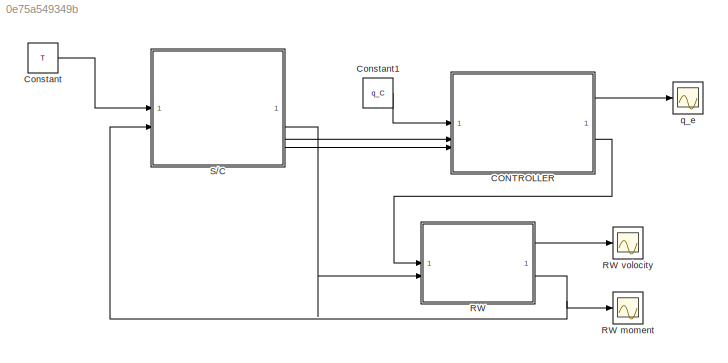
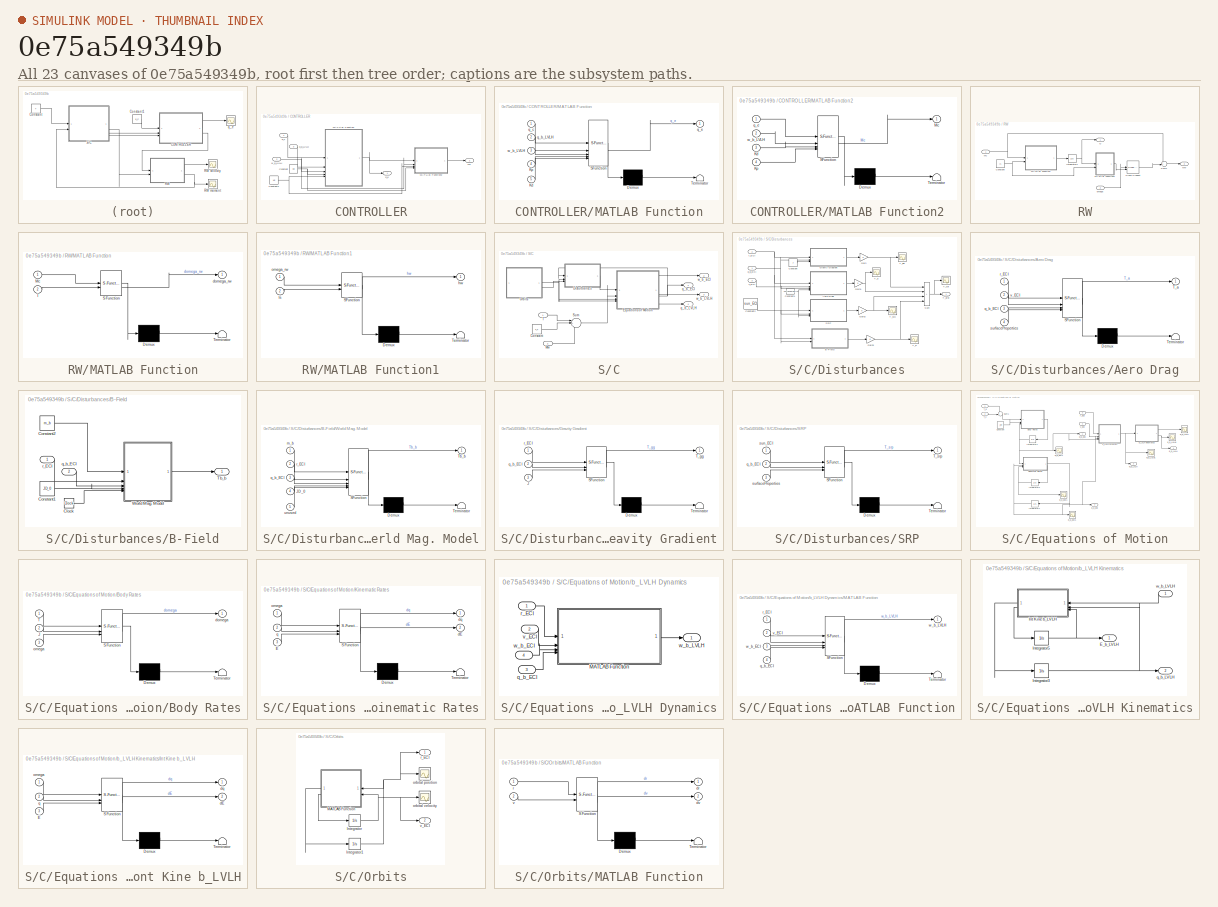
[diagram: thumbnail index - all 23 canvases of the model, root first then tree order]
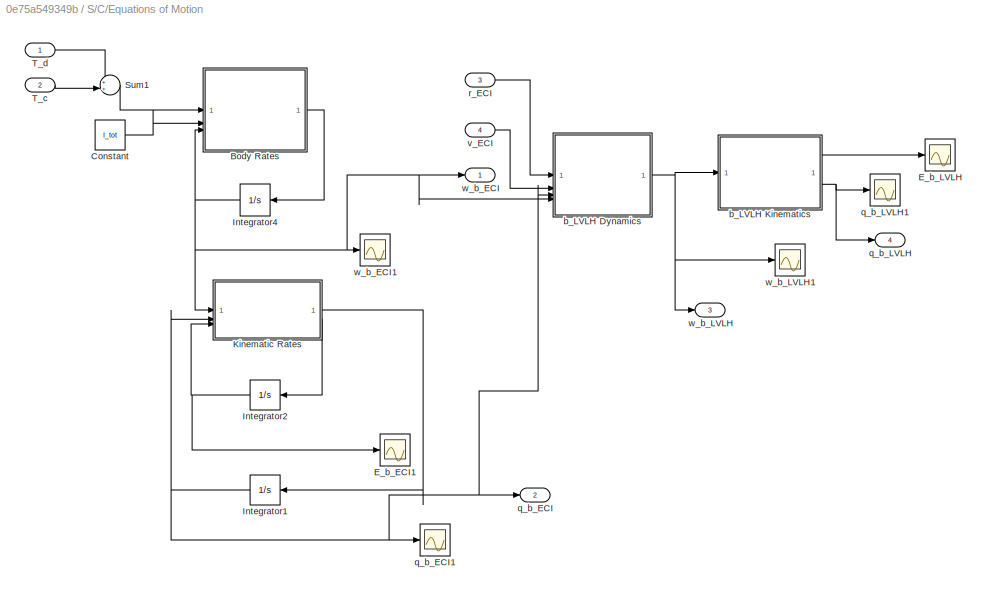
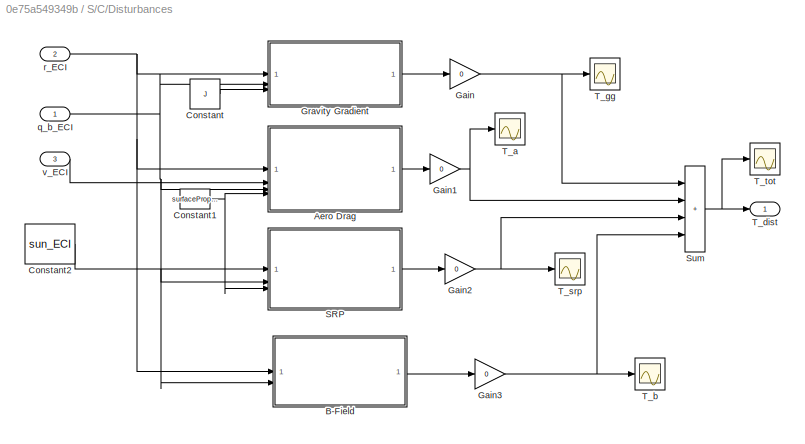
MODEL slx_0e75a549349b
KIND model
CONFIG AbsTol = auto
CONFIG EnableMultiTasking = off
CONFIG FixedStep = auto
CONFIG MaxStep = auto
CONFIG MinStep = auto
CONFIG RelTol = 1e-3
CONFIG SampleTimeConstraint = Unconstrained
CONFIG SolverName = VariableStepAuto
CONFIG StartTime = 0.0
CONFIG StopTime = orbital_period
BLOCK [SubSystem] CONTROLLER
BLOCK [Constant] CONTROLLER/Constant
  Value = Kp
BLOCK [Constant] CONTROLLER/Constant2
  Value = Kd
BLOCK [SubSystem] CONTROLLER/MATLAB Function
  ErrorFcn = Stateflow.Translate.translate
  LibrarySourceBlock = simulink/User-Defined\nFunctions/MATLAB Function
  PermitHierarchicalResolution = ExplicitOnly
  SFBlockType = MATLAB Function
  TreatAsAtomicUnit = on
BLOCK [Demux] CONTROLLER/MATLAB Function/ Demux 
  Outputs = 1
BLOCK [S-Function] CONTROLLER/MATLAB Function/ SFunction 
  EnableBusSupport = on
  FunctionName = sf_sfun
  PortCounts = [5 2]
  SFcnIsStateOwnerBlock = off
  SFunctionDeploymentMode = off
  Tag = Stateflow S-Function 1
BLOCK [Terminator] CONTROLLER/MATLAB Function/ Terminator 
BLOCK [Inport] CONTROLLER/MATLAB Function/Kd
  Port = 5
BLOCK [Inport] CONTROLLER/MATLAB Function/Kp
  Port = 4
BLOCK [Inport] CONTROLLER/MATLAB Function/q_b_LVLH
  Port = 2
BLOCK [Inport] CONTROLLER/MATLAB Function/q_c
BLOCK [Outport] CONTROLLER/MATLAB Function/q_e
BLOCK [Inport] CONTROLLER/MATLAB Function/w_b_LVLH
  Port = 3
BLOCK [SubSystem] CONTROLLER/MATLAB Function2
  ErrorFcn = Stateflow.Translate.translate
  PermitHierarchicalResolution = ExplicitOnly
  SFBlockType = MATLAB Function
  TreatAsAtomicUnit = on
BLOCK [Demux] CONTROLLER/MATLAB Function2/ Demux 
  Outputs = 1
BLOCK [S-Function] CONTROLLER/MATLAB Function2/ SFunction 
  EnableBusSupport = on
  FunctionName = sf_sfun
  PortCounts = [4 2]
  SFcnIsStateOwnerBlock = off
  SFunctionDeploymentMode = off
  Tag = Stateflow S-Function 12
BLOCK [Terminator] CONTROLLER/MATLAB Function2/ Terminator 
BLOCK [Inport] CONTROLLER/MATLAB Function2/Kd
  Port = 3
BLOCK [Inport] CONTROLLER/MATLAB Function2/Kp
  Port = 4
BLOCK [Outport] CONTROLLER/MATLAB Function2/Mc
BLOCK [Inport] CONTROLLER/MATLAB Function2/q_e
BLOCK [Inport] CONTROLLER/MATLAB Function2/w_b_LVLH
  Port = 2
BLOCK [Outport] CONTROLLER/Mc
  Port = 2
BLOCK [Inport] CONTROLLER/q_b_LVLH
  Port = 3
BLOCK [Inport] CONTROLLER/q_c
BLOCK [Outport] CONTROLLER/q_e
BLOCK [Inport] CONTROLLER/w_b_LVLH
  Port = 2
BLOCK [Constant] Constant
  Value = T
  VectorParams1D = off
BLOCK [Constant] Constant1
  Value = q_C
BLOCK [SubSystem] RW
BLOCK [Scope] RW moment
  Floating = off
  NumInputPorts = 1
  ScopeSpecificationString = Simulink.scopes.TimeScopeBlockCfg('CurrentConfiguration', extmgr.ConfigurationSet(extmgr.Configuration('Core','General UI',true),extmgr.Configuration('Core','Source UI',true),extmgr.Configuration('Sources','WiredSimulink',true,'DataLoggingVariableName','RW_M','DataLogging',true,'DataLoggingSaveFormat','Structure'),extmgr.Configuration('Visuals','Time Domain',true,'SerializedDisplays',{struct('MinY...<+1521ch>
BLOCK [Scope] RW volocity
  Floating = off
  NumInputPorts = 1
  ScopeSpecificationString = Simulink.scopes.TimeScopeBlockCfg('CurrentConfiguration', extmgr.ConfigurationSet(extmgr.Configuration('Core','General UI',true),extmgr.Configuration('Core','Source UI',true),extmgr.Configuration('Sources','WiredSimulink',true,'DataLoggingVariableName','RW_v','DataLogging',true,'DataLoggingSaveFormat','Array'),extmgr.Configuration('Visuals','Time Domain',true,'SerializedDisplays',{struct('MinYLimR...<+1523ch>
BLOCK [Constant] RW/Constant
  Value = Is
BLOCK [Reference] RW/Cross Product  REF=matrix_library/Cross Product
  LibrarySourceBlock = simulink/Matrix\nOperations/Cross Product
  SourceBlock = matrix_library/Cross Product
  SourceType = CrossProduct
BLOCK [Integrator] RW/Integrator3
BLOCK [SubSystem] RW/MATLAB Function
  ErrorFcn = Stateflow.Translate.translate
  PermitHierarchicalResolution = ExplicitOnly
  SFBlockType = MATLAB Function
  TreatAsAtomicUnit = on
BLOCK [Demux] RW/MATLAB Function/ Demux 
  Outputs = 1
BLOCK [S-Function] RW/MATLAB Function/ SFunction 
  EnableBusSupport = on
  FunctionName = sf_sfun
  PortCounts = [2 2]
  SFcnIsStateOwnerBlock = off
  SFunctionDeploymentMode = off
  Tag = Stateflow S-Function 3
BLOCK [Terminator] RW/MATLAB Function/ Terminator 
BLOCK [Inport] RW/MATLAB Function/I
  Port = 2
BLOCK [Inport] RW/MATLAB Function/Mc
BLOCK [Outport] RW/MATLAB Function/domega_rw
BLOCK [SubSystem] RW/MATLAB Function1
  ErrorFcn = Stateflow.Translate.translate
  PermitHierarchicalResolution = ExplicitOnly
  SFBlockType = MATLAB Function
  TreatAsAtomicUnit = on
BLOCK [Demux] RW/MATLAB Function1/ Demux 
  Outputs = 1
BLOCK [S-Function] RW/MATLAB Function1/ SFunction 
  EnableBusSupport = on
  FunctionName = sf_sfun
  PortCounts = [2 2]
  SFcnIsStateOwnerBlock = off
  SFunctionDeploymentMode = off
  Tag = Stateflow S-Function 5
BLOCK [Terminator] RW/MATLAB Function1/ Terminator 
BLOCK [Inport] RW/MATLAB Function1/Is
  Port = 2
BLOCK [Outport] RW/MATLAB Function1/hw
BLOCK [Inport] RW/MATLAB Function1/omega_rw
BLOCK [Inport] RW/Mc
BLOCK [Outport] RW/Mw
  Port = 2
BLOCK [Outport] RW/O
BLOCK [Sum] RW/Sum1
  Inputs = ++|
BLOCK [Inport] RW/omega
  Port = 2
BLOCK [SubSystem] S//C
BLOCK [Constant] S//C/Constant
  Value = T_c
BLOCK [SubSystem] S//C/Disturbances
BLOCK [SubSystem] S//C/Disturbances/Aero Drag
  ErrorFcn = Stateflow.Translate.translate
  PermitHierarchicalResolution = ExplicitOnly
  SFBlockType = MATLAB Function
  TreatAsAtomicUnit = on
BLOCK [Demux] S//C/Disturbances/Aero Drag/ Demux 
  Outputs = 1
BLOCK [S-Function] S//C/Disturbances/Aero Drag/ SFunction 
  EnableBusSupport = on
  FunctionName = sf_sfun
  PortCounts = [4 2]
  SFcnIsStateOwnerBlock = off
  SFunctionDeploymentMode = off
  Tag = Stateflow S-Function 4
BLOCK [Terminator] S//C/Disturbances/Aero Drag/ Terminator 
BLOCK [Outport] S//C/Disturbances/Aero Drag/T_a
BLOCK [Inport] S//C/Disturbances/Aero Drag/q_b_ECI
  Port = 3
BLOCK [Inport] S//C/Disturbances/Aero Drag/r_ECI
BLOCK [Inport] S//C/Disturbances/Aero Drag/surfaceProperties
  Port = 4
BLOCK [Inport] S//C/Disturbances/Aero Drag/v_ECI
  Port = 2
BLOCK [SubSystem] S//C/Disturbances/B-Field
BLOCK [Clock] S//C/Disturbances/B-Field/Clock
BLOCK [Constant] S//C/Disturbances/B-Field/Constant1
  Value = JD_0
BLOCK [Constant] S//C/Disturbances/B-Field/Constant2
  Value = m_b
BLOCK [Outport] S//C/Disturbances/B-Field/Tb_b
BLOCK [SubSystem] S//C/Disturbances/B-Field/World Mag. Model
  ErrorFcn = Stateflow.Translate.translate
  PermitHierarchicalResolution = ExplicitOnly
  SFBlockType = MATLAB Function
  TreatAsAtomicUnit = on
BLOCK [Demux] S//C/Disturbances/B-Field/World Mag. Model/ Demux 
  Outputs = 1
BLOCK [S-Function] S//C/Disturbances/B-Field/World Mag. Model/ SFunction 
  EnableBusSupport = on
  FunctionName = sf_sfun
  PortCounts = [5 2]
  SFcnIsStateOwnerBlock = off
  SFunctionDeploymentMode = off
  Tag = Stateflow S-Function 7
BLOCK [Terminator] S//C/Disturbances/B-Field/World Mag. Model/ Terminator 
BLOCK [Inport] S//C/Disturbances/B-Field/World Mag. Model/JD_0
  Port = 4
BLOCK [Outport] S//C/Disturbances/B-Field/World Mag. Model/Tb_b
BLOCK [Inport] S//C/Disturbances/B-Field/World Mag. Model/m_b
BLOCK [Inport] S//C/Disturbances/B-Field/World Mag. Model/q_b_ECI
  Port = 3
BLOCK [Inport] S//C/Disturbances/B-Field/World Mag. Model/r_ECI
  Port = 2
BLOCK [Inport] S//C/Disturbances/B-Field/World Mag. Model/unused
  Port = 5
BLOCK [Inport] S//C/Disturbances/B-Field/q_b_ECI
  Port = 2
BLOCK [Inport] S//C/Disturbances/B-Field/r_ECI
BLOCK [Constant] S//C/Disturbances/Constant
  Value = J
BLOCK [Constant] S//C/Disturbances/Constant1
  Value = surfaceProperties
BLOCK [Constant] S//C/Disturbances/Constant2
  Value = sun_ECI
BLOCK [Gain] S//C/Disturbances/Gain
  Gain = 0
BLOCK [Gain] S//C/Disturbances/Gain1
  Gain = 0
BLOCK [Gain] S//C/Disturbances/Gain2
  Gain = 0
BLOCK [Gain] S//C/Disturbances/Gain3
  Gain = 0
BLOCK [SubSystem] S//C/Disturbances/Gravity Gradient
  ErrorFcn = Stateflow.Translate.translate
  PermitHierarchicalResolution = ExplicitOnly
  SFBlockType = MATLAB Function
  TreatAsAtomicUnit = on
BLOCK [Demux] S//C/Disturbances/Gravity Gradient/ Demux 
  Outputs = 1
BLOCK [S-Function] S//C/Disturbances/Gravity Gradient/ SFunction 
  EnableBusSupport = on
  FunctionName = sf_sfun
  PortCounts = [3 2]
  SFcnIsStateOwnerBlock = off
  SFunctionDeploymentMode = off
  Tag = Stateflow S-Function 2
BLOCK [Terminator] S//C/Disturbances/Gravity Gradient/ Terminator 
BLOCK [Inport] S//C/Disturbances/Gravity Gradient/J
  Port = 3
BLOCK [Outport] S//C/Disturbances/Gravity Gradient/T_gg
BLOCK [Inport] S//C/Disturbances/Gravity Gradient/q_b_ECI
  Port = 2
BLOCK [Inport] S//C/Disturbances/Gravity Gradient/r_ECI
BLOCK [SubSystem] S//C/Disturbances/SRP
  ErrorFcn = Stateflow.Translate.translate
  PermitHierarchicalResolution = ExplicitOnly
  SFBlockType = MATLAB Function
  TreatAsAtomicUnit = on
BLOCK [Demux] S//C/Disturbances/SRP/ Demux 
  Outputs = 1
BLOCK [S-Function] S//C/Disturbances/SRP/ SFunction 
  EnableBusSupport = on
  FunctionName = sf_sfun
  PortCounts = [3 2]
  SFcnIsStateOwnerBlock = off
  SFunctionDeploymentMode = off
  Tag = Stateflow S-Function 8
BLOCK [Terminator] S//C/Disturbances/SRP/ Terminator 
BLOCK [Outport] S//C/Disturbances/SRP/T_srp
BLOCK [Inport] S//C/Disturbances/SRP/q_b_ECI
  Port = 2
BLOCK [Inport] S//C/Disturbances/SRP/sun_ECI
BLOCK [Inport] S//C/Disturbances/SRP/surfaceProperties
  Port = 3
BLOCK [Sum] S//C/Disturbances/Sum
  IconShape = rectangular
  Inputs = ++++
BLOCK [Scope] S//C/Disturbances/T_a
  Floating = off
  NumInputPorts = 1
  ScopeSpecificationString = Simulink.scopes.TimeScopeBlockCfg('CurrentConfiguration', extmgr.ConfigurationSet(extmgr.Configuration('Core','General UI',true),extmgr.Configuration('Core','Source UI',true),extmgr.Configuration('Sources','WiredSimulink',true,'DataLoggingVariableName','T_a','DataLogging',true,'DataLoggingSaveFormat','Structure'),extmgr.Configuration('Visuals','Time Domain',true,'SerializedDisplays',{struct('MinYL...<+1870ch>
BLOCK [Scope] S//C/Disturbances/T_b
  Floating = off
  NumInputPorts = 1
  ScopeSpecificationString = Simulink.scopes.TimeScopeBlockCfg('CurrentConfiguration', extmgr.ConfigurationSet(extmgr.Configuration('Core','General UI',true),extmgr.Configuration('Core','Source UI',true),extmgr.Configuration('Sources','WiredSimulink',true,'DataLoggingVariableName','T_b','DataLogging',true,'DataLoggingSaveFormat','Structure'),extmgr.Configuration('Visuals','Time Domain',true,'SerializedDisplays',{struct('MinYL...<+1748ch>
BLOCK [Outport] S//C/Disturbances/T_dist
BLOCK [Scope] S//C/Disturbances/T_gg
  Floating = off
  NumInputPorts = 1
  ScopeSpecificationString = Simulink.scopes.TimeScopeBlockCfg('CurrentConfiguration', extmgr.ConfigurationSet(extmgr.Configuration('Core','General UI',true),extmgr.Configuration('Core','Source UI',true),extmgr.Configuration('Sources','WiredSimulink',true,'DataLoggingVariableName','T_gg','DataLogging',true,'DataLoggingSaveFormat','Structure'),extmgr.Configuration('Visuals','Time Domain',true,'SerializedDisplays',{struct('MinY...<+1720ch>
BLOCK [Scope] S//C/Disturbances/T_srp
  Floating = off
  NumInputPorts = 1
  ScopeSpecificationString = Simulink.scopes.TimeScopeBlockCfg('CurrentConfiguration', extmgr.ConfigurationSet(extmgr.Configuration('Core','General UI',true),extmgr.Configuration('Core','Source UI',true),extmgr.Configuration('Sources','WiredSimulink',true,'DataLoggingVariableName','T_srp','DataLogging',true,'DataLoggingSaveFormat','Structure'),extmgr.Configuration('Visuals','Time Domain',true,'SerializedDisplays',{struct('Min...<+1766ch>
BLOCK [Scope] S//C/Disturbances/T_tot
  Floating = off
  NumInputPorts = 1
  ScopeSpecificationString = Simulink.scopes.TimeScopeBlockCfg('CurrentConfiguration', extmgr.ConfigurationSet(extmgr.Configuration('Core','General UI',true),extmgr.Configuration('Core','Source UI',true),extmgr.Configuration('Sources','WiredSimulink',true,'DataLoggingVariableName','T_tot','DataLogging',true,'DataLoggingSaveFormat','Structure'),extmgr.Configuration('Visuals','Time Domain',true,'SerializedDisplays',{struct('Min...<+1701ch>
BLOCK [Inport] S//C/Disturbances/q_b_ECI
BLOCK [Inport] S//C/Disturbances/r_ECI
  Port = 2
BLOCK [Inport] S//C/Disturbances/v_ECI
  Port = 3
BLOCK [SubSystem] S//C/Equations of Motion
BLOCK [SubSystem] S//C/Equations of Motion/Body Rates
  ErrorFcn = Stateflow.Translate.translate
  PermitHierarchicalResolution = ExplicitOnly
  SFBlockType = MATLAB Function
  TreatAsAtomicUnit = on
BLOCK [Demux] S//C/Equations of Motion/Body Rates/ Demux 
  Outputs = 1
BLOCK [S-Function] S//C/Equations of Motion/Body Rates/ SFunction 
  EnableBusSupport = on
  FunctionName = sf_sfun
  PortCounts = [3 2]
  SFcnIsStateOwnerBlock = off
  SFunctionDeploymentMode = off
  Tag = Stateflow S-Function 9
BLOCK [Terminator] S//C/Equations of Motion/Body Rates/ Terminator 
BLOCK [Inport] S//C/Equations of Motion/Body Rates/J
  Port = 2
BLOCK [Inport] S//C/Equations of Motion/Body Rates/T
BLOCK [Outport] S//C/Equations of Motion/Body Rates/domega
  VectorParamsAs1DForOutWhenUnconnected = off
BLOCK [Inport] S//C/Equations of Motion/Body Rates/omega
  Port = 3
BLOCK [Constant] S//C/Equations of Motion/Constant
  Value = I_tot
BLOCK [Scope] S//C/Equations of Motion/E_b_ECI1
  Floating = off
  NumInputPorts = 1
  ScopeSpecificationString = Simulink.scopes.TimeScopeBlockCfg('CurrentConfiguration', extmgr.ConfigurationSet(extmgr.Configuration('Core','General UI',true),extmgr.Configuration('Core','Source UI',true),extmgr.Configuration('Sources','WiredSimulink',true,'DataLoggingVariableName','ScopeData1','DataLogging',true,'DataLoggingSaveFormat','Array'),extmgr.Configuration('Visuals','Time Domain',true,'SerializedDisplays',{struct('Mi...<+1577ch>
BLOCK [Scope] S//C/Equations of Motion/E_b_LVLH
  Floating = off
  NumInputPorts = 1
  ScopeSpecificationString = Simulink.scopes.TimeScopeBlockCfg('CurrentConfiguration', extmgr.ConfigurationSet(extmgr.Configuration('Core','General UI',true),extmgr.Configuration('Core','Source UI',true),extmgr.Configuration('Sources','WiredSimulink',true,'DataLoggingVariableName','ScopeData2'),extmgr.Configuration('Visuals','Time Domain',true,'SerializedDisplays',{struct('MinYLimReal','-35.73206','MaxYLimReal','5.0324','YLab...<+1519ch>
BLOCK [Integrator] S//C/Equations of Motion/Integrator1
  InitialCondition = q_b_ECI_0
BLOCK [Integrator] S//C/Equations of Motion/Integrator2
  InitialCondition = E_b_ECI_0
BLOCK [Integrator] S//C/Equations of Motion/Integrator4
  InitialCondition = w_b_ECI_0
BLOCK [SubSystem] S//C/Equations of Motion/Kinematic Rates
  ErrorFcn = Stateflow.Translate.translate
  PermitHierarchicalResolution = ExplicitOnly
  SFBlockType = MATLAB Function
  TreatAsAtomicUnit = on
BLOCK [Demux] S//C/Equations of Motion/Kinematic Rates/ Demux 
  Outputs = 1
BLOCK [S-Function] S//C/Equations of Motion/Kinematic Rates/ SFunction 
  EnableBusSupport = on
  FunctionName = sf_sfun
  PortCounts = [3 3]
  SFcnIsStateOwnerBlock = off
  SFunctionDeploymentMode = off
  Tag = Stateflow S-Function 10
BLOCK [Terminator] S//C/Equations of Motion/Kinematic Rates/ Terminator 
BLOCK [Inport] S//C/Equations of Motion/Kinematic Rates/E
  Port = 3
BLOCK [Outport] S//C/Equations of Motion/Kinematic Rates/dE
  Port = 2
  VectorParamsAs1DForOutWhenUnconnected = off
BLOCK [Outport] S//C/Equations of Motion/Kinematic Rates/dq
  VectorParamsAs1DForOutWhenUnconnected = off
BLOCK [Inport] S//C/Equations of Motion/Kinematic Rates/omega
BLOCK [Inport] S//C/Equations of Motion/Kinematic Rates/q
  Port = 2
BLOCK [Sum] S//C/Equations of Motion/Sum1
  Inputs = ++|
BLOCK [Inport] S//C/Equations of Motion/T_c
  Port = 2
BLOCK [Inport] S//C/Equations of Motion/T_d
BLOCK [SubSystem] S//C/Equations of Motion/b_LVLH Dynamics
BLOCK [SubSystem] S//C/Equations of Motion/b_LVLH Dynamics/MATLAB Function
  ErrorFcn = Stateflow.Translate.translate
  PermitHierarchicalResolution = ExplicitOnly
  SFBlockType = MATLAB Function
  TreatAsAtomicUnit = on
BLOCK [Demux] S//C/Equations of Motion/b_LVLH Dynamics/MATLAB Function/ Demux 
  Outputs = 1
BLOCK [S-Function] S//C/Equations of Motion/b_LVLH Dynamics/MATLAB Function/ SFunction 
  EnableBusSupport = on
  FunctionName = sf_sfun
  PortCounts = [4 2]
  SFcnIsStateOwnerBlock = off
  SFunctionDeploymentMode = off
  Tag = Stateflow S-Function 13
BLOCK [Terminator] S//C/Equations of Motion/b_LVLH Dynamics/MATLAB Function/ Terminator 
BLOCK [Inport] S//C/Equations of Motion/b_LVLH Dynamics/MATLAB Function/q_b_ECI
  Port = 4
BLOCK [Inport] S//C/Equations of Motion/b_LVLH Dynamics/MATLAB Function/r_ECI
BLOCK [Inport] S//C/Equations of Motion/b_LVLH Dynamics/MATLAB Function/v_ECI
  Port = 2
BLOCK [Inport] S//C/Equations of Motion/b_LVLH Dynamics/MATLAB Function/w_b_ECI
  Port = 3
BLOCK [Outport] S//C/Equations of Motion/b_LVLH Dynamics/MATLAB Function/w_b_LVLH
  VectorParamsAs1DForOutWhenUnconnected = off
BLOCK [Inport] S//C/Equations of Motion/b_LVLH Dynamics/q_b_ECI
  Port = 3
BLOCK [Inport] S//C/Equations of Motion/b_LVLH Dynamics/r_ECI 
BLOCK [Inport] S//C/Equations of Motion/b_LVLH Dynamics/v_ECI
  Port = 2
BLOCK [Inport] S//C/Equations of Motion/b_LVLH Dynamics/w_b_ECI
  Port = 4
BLOCK [Outport] S//C/Equations of Motion/b_LVLH Dynamics/w_b_LVLH
  VectorParamsAs1DForOutWhenUnconnected = off
BLOCK [SubSystem] S//C/Equations of Motion/b_LVLH Kinematics
BLOCK [Outport] S//C/Equations of Motion/b_LVLH Kinematics/E_b_LVLH
  VectorParamsAs1DForOutWhenUnconnected = off
BLOCK [SubSystem] S//C/Equations of Motion/b_LVLH Kinematics/Int Kine b_LVLH
  ErrorFcn = Stateflow.Translate.translate
  PermitHierarchicalResolution = ExplicitOnly
  SFBlockType = MATLAB Function
  TreatAsAtomicUnit = on
BLOCK [Demux] S//C/Equations of Motion/b_LVLH Kinematics/Int Kine b_LVLH/ Demux 
  Outputs = 1
BLOCK [S-Function] S//C/Equations of Motion/b_LVLH Kinematics/Int Kine b_LVLH/ SFunction 
  EnableBusSupport = on
  FunctionName = sf_sfun
  PortCounts = [3 3]
  SFcnIsStateOwnerBlock = off
  SFunctionDeploymentMode = off
  Tag = Stateflow S-Function 14
BLOCK [Terminator] S//C/Equations of Motion/b_LVLH Kinematics/Int Kine b_LVLH/ Terminator 
BLOCK [Inport] S//C/Equations of Motion/b_LVLH Kinematics/Int Kine b_LVLH/E
  Port = 3
BLOCK [Outport] S//C/Equations of Motion/b_LVLH Kinematics/Int Kine b_LVLH/dE
  Port = 2
  VectorParamsAs1DForOutWhenUnconnected = off
BLOCK [Outport] S//C/Equations of Motion/b_LVLH Kinematics/Int Kine b_LVLH/dq
  VectorParamsAs1DForOutWhenUnconnected = off
BLOCK [Inport] S//C/Equations of Motion/b_LVLH Kinematics/Int Kine b_LVLH/omega
BLOCK [Inport] S//C/Equations of Motion/b_LVLH Kinematics/Int Kine b_LVLH/q
  Port = 2
BLOCK [Integrator] S//C/Equations of Motion/b_LVLH Kinematics/Integrator3
  InitialCondition = q_b_LVLH_0
BLOCK [Integrator] S//C/Equations of Motion/b_LVLH Kinematics/Integrator5
  InitialCondition = E_b_LVLH_0
BLOCK [Outport] S//C/Equations of Motion/b_LVLH Kinematics/q_b_LVLH
  Port = 2
  VectorParamsAs1DForOutWhenUnconnected = off
BLOCK [Inport] S//C/Equations of Motion/b_LVLH Kinematics/w_b_LVLH
BLOCK [Outport] S//C/Equations of Motion/q_b_ECI
  Port = 2
  VectorParamsAs1DForOutWhenUnconnected = off
BLOCK [Scope] S//C/Equations of Motion/q_b_ECI1
  Floating = off
  NumInputPorts = 1
  ScopeSpecificationString = Simulink.scopes.TimeScopeBlockCfg('CurrentConfiguration', extmgr.ConfigurationSet(extmgr.Configuration('Core','General UI',true),extmgr.Configuration('Core','Source UI',true),extmgr.Configuration('Sources','WiredSimulink',true,'DataLoggingVariableName','ScopeData2','DataLogging',true,'DataLoggingSaveFormat','Array'),extmgr.Configuration('Visuals','Time Domain',true,'SerializedDisplays',{struct('Mi...<+1585ch>
BLOCK [Outport] S//C/Equations of Motion/q_b_LVLH
  Port = 4
BLOCK [Scope] S//C/Equations of Motion/q_b_LVLH1
  Floating = off
  NumInputPorts = 1
  ScopeSpecificationString = Simulink.scopes.TimeScopeBlockCfg('CurrentConfiguration', extmgr.ConfigurationSet(extmgr.Configuration('Core','General UI',true),extmgr.Configuration('Core','Source UI',true),extmgr.Configuration('Sources','WiredSimulink',true,'DataLoggingVariableName','ScopeData1'),extmgr.Configuration('Visuals','Time Domain',true,'SerializedDisplays',{struct('MinYLimReal','-0.944','MaxYLimReal','1.216','YLabelRe...<+1529ch>
BLOCK [Inport] S//C/Equations of Motion/r_ECI
  Port = 3
BLOCK [Inport] S//C/Equations of Motion/v_ECI
  Port = 4
BLOCK [Outport] S//C/Equations of Motion/w_b_ECI
  VectorParamsAs1DForOutWhenUnconnected = off
BLOCK [Scope] S//C/Equations of Motion/w_b_ECI1
  Floating = off
  NumInputPorts = 1
  ScopeSpecificationString = Simulink.scopes.TimeScopeBlockCfg('CurrentConfiguration', extmgr.ConfigurationSet(extmgr.Configuration('Core','General UI',true),extmgr.Configuration('Core','Source UI',true),extmgr.Configuration('Sources','WiredSimulink',true,'DataLoggingVariableName','ScopeData3','DataLogging',true,'DataLoggingSaveFormat','Array'),extmgr.Configuration('Visuals','Time Domain',true,'SerializedDisplays',{struct('Mi...<+1577ch>
BLOCK [Outport] S//C/Equations of Motion/w_b_LVLH
  Port = 3
BLOCK [Scope] S//C/Equations of Motion/w_b_LVLH1
  Floating = off
  NumInputPorts = 1
  ScopeSpecificationString = Simulink.scopes.TimeScopeBlockCfg('CurrentConfiguration', extmgr.ConfigurationSet(extmgr.Configuration('Core','General UI',true),extmgr.Configuration('Core','Source UI',true),extmgr.Configuration('Sources','WiredSimulink',true,'DataLoggingVariableName','ScopeData3'),extmgr.Configuration('Visuals','Time Domain',true,'SerializedDisplays',{struct('MinYLimReal','-0.0727','MaxYLimReal','0.01934','YLabe...<+1501ch>
BLOCK [Inport] S//C/Mw
  Port = 2
BLOCK [SubSystem] S//C/Orbits
BLOCK [Integrator] S//C/Orbits/Integrator
  InitialCondition = v_ECI_0
BLOCK [Integrator] S//C/Orbits/Integrator1
  InitialCondition = r_ECI_0
BLOCK [SubSystem] S//C/Orbits/MATLAB Function
  ErrorFcn = Stateflow.Translate.translate
  PermitHierarchicalResolution = ExplicitOnly
  SFBlockType = MATLAB Function
  TreatAsAtomicUnit = on
BLOCK [Demux] S//C/Orbits/MATLAB Function/ Demux 
  Outputs = 1
BLOCK [S-Function] S//C/Orbits/MATLAB Function/ SFunction 
  EnableBusSupport = on
  FunctionName = sf_sfun
  PortCounts = [2 3]
  SFcnIsStateOwnerBlock = off
  SFunctionDeploymentMode = off
  Tag = Stateflow S-Function 11
BLOCK [Terminator] S//C/Orbits/MATLAB Function/ Terminator 
BLOCK [Outport] S//C/Orbits/MATLAB Function/dr
  VectorParamsAs1DForOutWhenUnconnected = off
BLOCK [Outport] S//C/Orbits/MATLAB Function/dv
  Port = 2
  VectorParamsAs1DForOutWhenUnconnected = off
BLOCK [Inport] S//C/Orbits/MATLAB Function/r
BLOCK [Inport] S//C/Orbits/MATLAB Function/v
  Port = 2
BLOCK [Scope] S//C/Orbits/orbital position
  Floating = off
  NumInputPorts = 1
  ScopeSpecificationString = Simulink.scopes.TimeScopeBlockCfg('CurrentConfiguration', extmgr.ConfigurationSet(extmgr.Configuration('Core','General UI',true),extmgr.Configuration('Core','Source UI',true),extmgr.Configuration('Sources','WiredSimulink',true,'DataLogging',true,'DataLoggingVariableName','r_ECI','DataLoggingSaveFormat','Array','DataLoggingDecimation','1','DataLoggingDecimateData',true),extmgr.Configuration('Visual...<+1784ch>
BLOCK [Scope] S//C/Orbits/orbital velocity
  Floating = off
  NumInputPorts = 1
  ScopeSpecificationString = Simulink.scopes.TimeScopeBlockCfg('CurrentConfiguration', extmgr.ConfigurationSet(extmgr.Configuration('Core','General UI',true),extmgr.Configuration('Core','Source UI',true),extmgr.Configuration('Sources','WiredSimulink',true,'DataLogging',true,'DataLoggingVariableName','v_ECI','DataLoggingSaveFormat','Array','DataLoggingDecimation','1','DataLoggingDecimateData',true),extmgr.Configuration('Visual...<+1704ch>
BLOCK [Outport] S//C/Orbits/r_ECI
  VectorParamsAs1DForOutWhenUnconnected = off
BLOCK [Outport] S//C/Orbits/v_ECI
  Port = 2
  VectorParamsAs1DForOutWhenUnconnected = off
BLOCK [Sum] S//C/Sum
  Inputs = |+++
BLOCK [Inport] S//C/T
BLOCK [Outport] S//C/q_b_ECI
BLOCK [Outport] S//C/q_b_LVLH
  Port = 4
BLOCK [Outport] S//C/w_b_ECI
  Port = 2
BLOCK [Outport] S//C/w_b_LVLH
  Port = 3
BLOCK [Scope] q_e
  Floating = off
  NumInputPorts = 1
  ScopeSpecificationString = Simulink.scopes.TimeScopeBlockCfg('CurrentConfiguration', extmgr.ConfigurationSet(extmgr.Configuration('Core','General UI',true),extmgr.Configuration('Core','Source UI',true),extmgr.Configuration('Sources','WiredSimulink',true,'DataLoggingVariableName','q_e','DataLogging',true,'DataLoggingSaveFormat','StructureWithTime'),extmgr.Configuration('Visuals','Time Domain',true,'SerializedDisplays',{struc...<+1610ch>
NET CONTROLLER/Constant2:1 -> CONTROLLER/MATLAB Function2:3, CONTROLLER/MATLAB Function:5
NET CONTROLLER/Constant:1 -> CONTROLLER/MATLAB Function2:4, CONTROLLER/MATLAB Function:4
LINE CONTROLLER/MATLAB Function2:1 -> CONTROLLER/Mc:1
NET CONTROLLER/MATLAB Function:1 -> CONTROLLER/MATLAB Function2:1, CONTROLLER/q_e:1
LINE CONTROLLER/q_b_LVLH:1 -> CONTROLLER/MATLAB Function:2
LINE CONTROLLER/q_c:1 -> CONTROLLER/MATLAB Function:1
NET CONTROLLER/w_b_LVLH:1 -> CONTROLLER/MATLAB Function2:2, CONTROLLER/MATLAB Function:3
LINE CONTROLLER:1 -> q_e:1
LINE CONTROLLER:2 -> RW:1
LINE Constant1:1 -> CONTROLLER:1
LINE Constant:1 -> S//C:1
NET RW/Constant:1 -> RW/MATLAB Function1:2, RW/MATLAB Function:2
LINE RW/Cross Product:1 -> RW/Sum1:2
NET RW/Integrator3:1 -> RW/MATLAB Function1:1, RW/O:1
LINE RW/MATLAB Function1:1 -> RW/Cross Product:2
LINE RW/MATLAB Function:1 -> RW/Integrator3:1
NET RW/Mc:1 -> RW/MATLAB Function:1, RW/Sum1:1
LINE RW/Sum1:1 -> RW/Mw:1
LINE RW/omega:1 -> RW/Cross Product:1
LINE RW:1 -> RW volocity:1
NET RW:2 -> RW moment:1, S//C:2
LINE S//C/Constant:1 -> S//C/Sum:2
LINE S//C/Disturbances/Aero Drag:1 -> S//C/Disturbances/Gain1:1
LINE S//C/Disturbances/B-Field/Clock:1 -> S//C/Disturbances/B-Field/World Mag. Model:5
LINE S//C/Disturbances/B-Field/Constant1:1 -> S//C/Disturbances/B-Field/World Mag. Model:4
LINE S//C/Disturbances/B-Field/Constant2:1 -> S//C/Disturbances/B-Field/World Mag. Model:1
LINE S//C/Disturbances/B-Field/World Mag. Model:1 -> S//C/Disturbances/B-Field/Tb_b:1
LINE S//C/Disturbances/B-Field/q_b_ECI:1 -> S//C/Disturbances/B-Field/World Mag. Model:3
LINE S//C/Disturbances/B-Field/r_ECI:1 -> S//C/Disturbances/B-Field/World Mag. Model:2
LINE S//C/Disturbances/B-Field:1 -> S//C/Disturbances/Gain3:1
NET S//C/Disturbances/Constant1:1 -> S//C/Disturbances/Aero Drag:4, S//C/Disturbances/SRP:3
LINE S//C/Disturbances/Constant2:1 -> S//C/Disturbances/SRP:1
LINE S//C/Disturbances/Constant:1 -> S//C/Disturbances/Gravity Gradient:3
NET S//C/Disturbances/Gain1:1 -> S//C/Disturbances/Sum:2, S//C/Disturbances/T_a:1
NET S//C/Disturbances/Gain2:1 -> S//C/Disturbances/Sum:3, S//C/Disturbances/T_srp:1
NET S//C/Disturbances/Gain3:1 -> S//C/Disturbances/Sum:4, S//C/Disturbances/T_b:1
NET S//C/Disturbances/Gain:1 -> S//C/Disturbances/Sum:1, S//C/Disturbances/T_gg:1
LINE S//C/Disturbances/Gravity Gradient:1 -> S//C/Disturbances/Gain:1
LINE S//C/Disturbances/SRP:1 -> S//C/Disturbances/Gain2:1
NET S//C/Disturbances/Sum:1 -> S//C/Disturbances/T_dist:1, S//C/Disturbances/T_tot:1
NET S//C/Disturbances/q_b_ECI:1 -> S//C/Disturbances/Aero Drag:3, S//C/Disturbances/B-Field:2, S//C/Disturbances/Gravity Gradient:2, S//C/Disturbances/SRP:2
NET S//C/Disturbances/r_ECI:1 -> S//C/Disturbances/Aero Drag:1, S//C/Disturbances/B-Field:1, S//C/Disturbances/Gravity Gradient:1
LINE S//C/Disturbances/v_ECI:1 -> S//C/Disturbances/Aero Drag:2
LINE S//C/Disturbances:1 -> S//C/Equations of Motion:1
LINE S//C/Equations of Motion/Body Rates:1 -> S//C/Equations of Motion/Integrator4:1
LINE S//C/Equations of Motion/Constant:1 -> S//C/Equations of Motion/Body Rates:2
NET S//C/Equations of Motion/Integrator1:1 -> S//C/Equations of Motion/Kinematic Rates:2, S//C/Equations of Motion/b_LVLH Dynamics:3, S//C/Equations of Motion/q_b_ECI1:1, S//C/Equations of Motion/q_b_ECI:1
NET S//C/Equations of Motion/Integrator2:1 -> S//C/Equations of Motion/E_b_ECI1:1, S//C/Equations of Motion/Kinematic Rates:3
NET S//C/Equations of Motion/Integrator4:1 -> S//C/Equations of Motion/Body Rates:3, S//C/Equations of Motion/Kinematic Rates:1, S//C/Equations of Motion/b_LVLH Dynamics:4, S//C/Equations of Motion/w_b_ECI1:1, S//C/Equations of Motion/w_b_ECI:1
LINE S//C/Equations of Motion/Kinematic Rates:1 -> S//C/Equations of Motion/Integrator1:1
LINE S//C/Equations of Motion/Kinematic Rates:2 -> S//C/Equations of Motion/Integrator2:1
LINE S//C/Equations of Motion/Sum1:1 -> S//C/Equations of Motion/Body Rates:1
LINE S//C/Equations of Motion/T_c:1 -> S//C/Equations of Motion/Sum1:2
LINE S//C/Equations of Motion/T_d:1 -> S//C/Equations of Motion/Sum1:1
LINE S//C/Equations of Motion/b_LVLH Dynamics/MATLAB Function:1 -> S//C/Equations of Motion/b_LVLH Dynamics/w_b_LVLH:1
LINE S//C/Equations of Motion/b_LVLH Dynamics/q_b_ECI:1 -> S//C/Equations of Motion/b_LVLH Dynamics/MATLAB Function:4
LINE S//C/Equations of Motion/b_LVLH Dynamics/r_ECI :1 -> S//C/Equations of Motion/b_LVLH Dynamics/MATLAB Function:1
LINE S//C/Equations of Motion/b_LVLH Dynamics/v_ECI:1 -> S//C/Equations of Motion/b_LVLH Dynamics/MATLAB Function:2
LINE S//C/Equations of Motion/b_LVLH Dynamics/w_b_ECI:1 -> S//C/Equations of Motion/b_LVLH Dynamics/MATLAB Function:3
NET S//C/Equations of Motion/b_LVLH Dynamics:1 -> S//C/Equations of Motion/b_LVLH Kinematics:1, S//C/Equations of Motion/w_b_LVLH1:1, S//C/Equations of Motion/w_b_LVLH:1
LINE S//C/Equations of Motion/b_LVLH Kinematics/Int Kine b_LVLH:1 -> S//C/Equations of Motion/b_LVLH Kinematics/Integrator3:1
LINE S//C/Equations of Motion/b_LVLH Kinematics/Int Kine b_LVLH:2 -> S//C/Equations of Motion/b_LVLH Kinematics/Integrator5:1
NET S//C/Equations of Motion/b_LVLH Kinematics/Integrator3:1 -> S//C/Equations of Motion/b_LVLH Kinematics/Int Kine b_LVLH:2, S//C/Equations of Motion/b_LVLH Kinematics/q_b_LVLH:1
NET S//C/Equations of Motion/b_LVLH Kinematics/Integrator5:1 -> S//C/Equations of Motion/b_LVLH Kinematics/E_b_LVLH:1, S//C/Equations of Motion/b_LVLH Kinematics/Int Kine b_LVLH:3
LINE S//C/Equations of Motion/b_LVLH Kinematics/w_b_LVLH:1 -> S//C/Equations of Motion/b_LVLH Kinematics/Int Kine b_LVLH:1
LINE S//C/Equations of Motion/b_LVLH Kinematics:1 -> S//C/Equations of Motion/E_b_LVLH:1
NET S//C/Equations of Motion/b_LVLH Kinematics:2 -> S//C/Equations of Motion/q_b_LVLH1:1, S//C/Equations of Motion/q_b_LVLH:1
LINE S//C/Equations of Motion/r_ECI:1 -> S//C/Equations of Motion/b_LVLH Dynamics:1
LINE S//C/Equations of Motion/v_ECI:1 -> S//C/Equations of Motion/b_LVLH Dynamics:2
LINE S//C/Equations of Motion:1 -> S//C/w_b_ECI:1
NET S//C/Equations of Motion:2 -> S//C/Disturbances:1, S//C/q_b_ECI:1
LINE S//C/Equations of Motion:3 -> S//C/w_b_LVLH:1
LINE S//C/Equations of Motion:4 -> S//C/q_b_LVLH:1
LINE S//C/Mw:1 -> S//C/Sum:3
NET S//C/Orbits/Integrator1:1 -> S//C/Orbits/MATLAB Function:1, S//C/Orbits/orbital position:1, S//C/Orbits/r_ECI:1
NET S//C/Orbits/Integrator:1 -> S//C/Orbits/MATLAB Function:2, S//C/Orbits/orbital velocity:1, S//C/Orbits/v_ECI:1
LINE S//C/Orbits/MATLAB Function:1 -> S//C/Orbits/Integrator1:1
LINE S//C/Orbits/MATLAB Function:2 -> S//C/Orbits/Integrator:1
NET S//C/Orbits:1 -> S//C/Disturbances:2, S//C/Equations of Motion:3
NET S//C/Orbits:2 -> S//C/Disturbances:3, S//C/Equations of Motion:4
LINE S//C/Sum:1 -> S//C/Equations of Motion:2
LINE S//C/T:1 -> S//C/Sum:1
LINE S//C:2 -> RW:2
LINE S//C:3 -> CONTROLLER:2
LINE S//C:4 -> CONTROLLER:3
note: NET lines group one-source signal fan-out (src -> all destinations, sorted); 1:1 wires keep LINE
CHART CONTROLLER/MATLAB Function2 states=1 transitions=1
  STATE_LABEL 'eML_blk_kernel()'
  STATE_LABEL 'SCRIPT:\nfunction Mc = momentC(q_e, w_b_LVLH, Kd, Kp)\n\neps_err = q_e(1:3);\n\nMc = Kp*eps_err + Kd*w_b_LVLH;\n\n\nend'
CHART S//C/Equations of Motion/b_LVLH Dynamics/MATLAB Function states=1 transitions=1
  STATE_LABEL 'eML_blk_kernel()'
  STATE_LABEL "SCRIPT:\nfunction w_b_LVLH = fcn(r_ECI, v_ECI, w_b_ECI, q_b_ECI)\n%#codegen\n\n% C_b_ECI = quat2C(q_b_ECI);\n\n% Extract quaternion components\neps = q_b_ECI(1:3);\neda = q_b_ECI(4);\n\n% Quaternion to rotation matrix\neps_cross = [0, -eps(3), eps(2);\n             eps(3), 0, -eps(1);\n            -eps(2), eps(1), 0];\n\nC_b_ECI = (2 * eda^2 - 1) * eye(3) + 2 * (eps * eps') - 2 * eda * eps_cross;\n\nw_LVLH_ECI = c...<+74ch>"
CHART CONTROLLER/MATLAB Function states=1 transitions=1
  STATE_LABEL 'eML_blk_kernel()'
  STATE_LABEL 'SCRIPT:\nfunction q_e  = controller(q_c, q_b_LVLH, w_b_LVLH, Kp, Kd)\n%#codegen\n% q_e = quatMult(q, quatConjugate(q_c));\n\n% Quat conjugate rotated\nq_c_conj = [-q_c(1), -q_c(2), -q_c(3), q_c(4)];\np0 = q_c_conj(1); p1 = q_c_conj(2); p2 = q_c_conj(3); p3 = q_c_conj(4);\n\n% Quat multiplication\nq0 = q_b_LVLH(1,1); q1 = q_b_LVLH(2); q2 = q_b_LVLH(3); q3 = q_b_LVLH(4);\n\nq1 = q0 * p0 - q1 * p1 - q2 * p2 - q3...<+185ch>'
CHART S//C/Equations of Motion/b_LVLH Kinematics/Int Kine b_LVLH states=1 transitions=1
  STATE_LABEL 'eML_blk_kernel()'
  STATE_LABEL "SCRIPT:\nfunction [dq,dE] = kinematics(omega, q, E)\n%#codegen\n\n% unpack quaternion\n\nepsilon = q(1:3,1);\neta = q(4,1);\n\neps_cross = [0,  -eps(3), eps(2);\n             eps(3),  0, -eps(1);\n             -eps(2), eps(1), 0];\n\ndepsilon = 1/2*(eta*eye(3) + eps_cross)*omega;\ndeta = -1/2*epsilon'*omega;\n\ndq = [depsilon; deta];\n\nLBI = 1/cos(E(2))*[cos(E(2)) sin(E(1))*sin(E(2))  cos(E(1))*sin(E(2));\n        ...<+141ch>"
CHART S//C/Disturbances/Gravity Gradient states=1 transitions=1
  STATE_LABEL 'eML_blk_kernel()'
  STATE_LABEL 'SCRIPT:\nfunction T_gg = gg_torque(r_ECI, q_b_ECI, J)\n% Function that calculates gravity gradient torque\n\n% Constant(s)\nmuE = 398600;  % km^3/s^2, Mu earth\nI = eye(3);    % Identity\n\n% Unpack Quat\neps1 = q_b_ECI(1);\neps2 = q_b_ECI(2);\neps3 = q_b_ECI(3);\neps = [eps1; eps2; eps3];\n\neda = q_b_ECI(4);\n\n% Solve\neps_cross = [0,  -eps3, eps2;\n             eps3,  0, -eps1;\n             -eps2, eps1, 0];\n\nC_...<+257ch>'
CHART RW/MATLAB Function states=1 transitions=1
  STATE_LABEL 'eML_blk_kernel()'
  STATE_LABEL 'SCRIPT:\nfunction domega_rw = Rw(Mc, I)\n% domega = J \\ (T - cross(-omega, J*omega));\n% domega_rw = I\\ (Mc - cross(-omega_rw, I*omega_rw));\ndomega_rw =I\\ (Mc);\n\n\nend'
CHART S//C/Disturbances/Aero Drag states=1 transitions=1
  STATE_LABEL 'eML_blk_kernel()'
  STATE_LABEL 'SCRIPT:\nfunction T_a = aero_drag_torque(r_ECI, v_ECI, q_b_ECI, surfaceProperties) \n% Constants\nC_d = 2.5;\nr_earth = 6478 * 1000;\nrho0 = 1.225;\nI = eye(3);    % Identity\n\n% Extract quaternion components\neps = q_b_ECI(1:3);\neda = q_b_ECI(4);\n\n% Quaternion to rotation matrix\neps_cross = [0, -eps(3), eps(2);\n             eps(3), 0, -eps(1);\n            -eps(2), eps(1), 0];\nC_b_ECI = (2 * eda^2 - 1) * ...<+812ch>'
CHART RW/MATLAB Function1 states=1 transitions=1
  STATE_LABEL 'eML_blk_kernel()'
  STATE_LABEL 'SCRIPT:\nfunction hw = multi(omega_rw, Is)\nhw = Is*omega_rw;\n\n\nend'
CHART S//C/Disturbances/B-Field/World Mag. Model states=1 transitions=1
  STATE_LABEL 'eML_blk_kernel()'
  STATE_LABEL 'SCRIPT:\nfunction Tb_b = WMM(m_b, r_ECI, q_b_ECI, JD_0, ~)\n% Function of World Magn. Model\n\n% DGRF 2020 (given)\na = 6371.2;      %km\ng_11 = -1450.9;  %nT\nh_11 = 4652.5;   %nT\ng_10 = -29404.8; %nT\nm_ECEF = a^3*[g_11; h_11; g_10];\n\n\nI = eye(3);    % Identity\n\neps1 = q_b_ECI(1);\neps2 = q_b_ECI(2);\neps3 = q_b_ECI(3);\neps = [eps1; eps2; eps3];\n\neda = q_b_ECI(4);\n\neps_cross = [0,  -eps3, eps2;\n          ...<+1323ch>'
CHART S//C/Disturbances/SRP states=1 transitions=1
  STATE_LABEL 'eML_blk_kernel()'
  STATE_LABEL "SCRIPT:\nfunction T_srp  = SRP_torque(sun_ECI, q_b_ECI, surfaceProperties)\n\np_sun = 4.5e-6; %N/m (given)\n\nI = eye(3);\n\n% Unpack Quat\neps1 = q_b_ECI(1);\neps2 = q_b_ECI(2);\neps3 = q_b_ECI(3);\neps = [eps1; eps2; eps3];\n\neda = q_b_ECI(4);\n\neps_cross = [0,  -eps3, eps2;\n             eps3,  0, -eps1;\n             -eps2, eps1, 0];\n\nC_b_ECI = (2*eda^2 - 1)*I + 2*(eps*eps') - 2*eda*eps_cross; % rotation w/ ...<+571ch>"
CHART S//C/Equations of Motion/Body Rates states=1 transitions=1
  STATE_LABEL 'eML_blk_kernel()'
  STATE_LABEL 'SCRIPT:\nfunction domega = dynamics(T, J, omega)\n%#codegen\n\n\n% Compute the derivative of the angular velocity $\\omega$ here\ndomega = J \\ (T - cross(omega, J*omega));\n\n\nend'
CHART S//C/Equations of Motion/Kinematic Rates states=1 transitions=1
  STATE_LABEL 'eML_blk_kernel()'
  STATE_LABEL 'SCRIPT:\nfunction [dq,dE] = kinematics(omega, q, E)\n%#codegen\n\nI = eye(3); % Identity\n\n% unpack quaternion\neps1 = q(1);\neps2 = q(2);\neps3 = q(3);\neps = [eps1; eps2; eps3];\n\neda = q(4);\n\n% Compute the derivative of the quaternion components here\n             \n% Quaternion rates Eq.1.56\neps_cross = [0,  -eps3, eps2;\n             eps3,  0, -eps1;\n             -eps2, eps1, 0];\n\ndeps = 0.5*(eda*I + eps_...<+336ch>'
CHART S//C/Orbits/MATLAB Function states=1 transitions=1
  STATE_LABEL 'eML_blk_kernel()'
  STATE_LABEL 'SCRIPT:\nfunction [dr,dv] = orbitalDynamics(r, v)\nmuE = 398600; % km^3/s^2, Mu Earth\nrx = r(1);\nry = r(2);\nrz = r(3);\nvx = v(1); \nvy = v(2); \nvz = v(3); \n\nr_norm = norm([rx ry rz]);\n\ndvx = -muE*rx / r_norm^3;\ndvy = -muE*ry / r_norm^3;\ndvz = -muE*rz / r_norm^3;\n\ndr = [vx; vy; vz];\ndv = [dvx; dvy; dvz];\n\nend'
CHART  states=0 transitions=0
CHART  states=0 transitions=0
CHART  states=0 transitions=0
CHART  states=0 transitions=0
CHART  states=0 transitions=0
CHART  states=0 transitions=0
CHART  states=0 transitions=0
CHART  states=0 transitions=0
CHART  states=0 transitions=0
CHART  states=0 transitions=0
CHART  states=0 transitions=0
CHART  states=0 transitions=0
CHART  states=0 transitions=0
